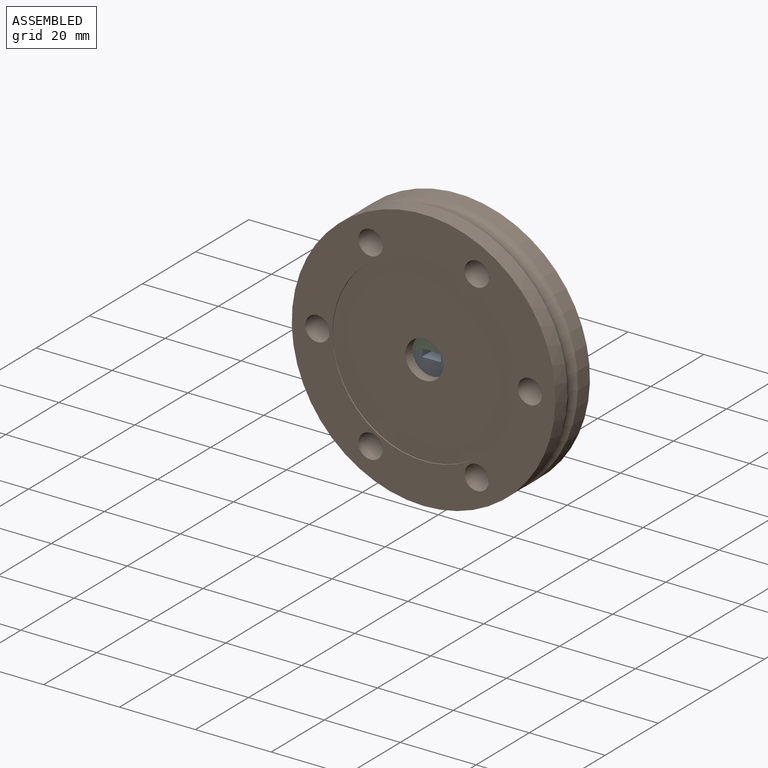
[diagram: assembled view]
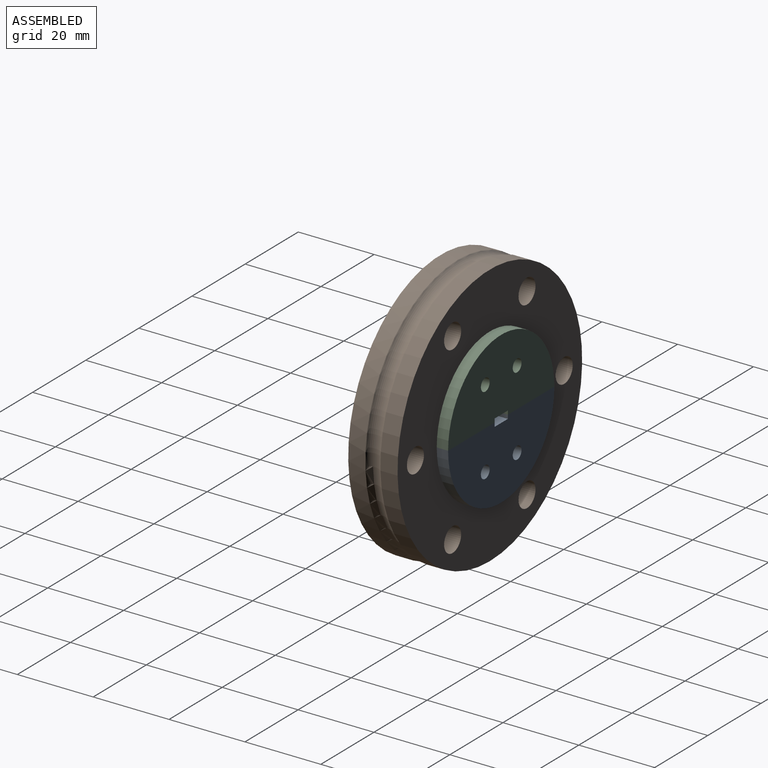
[diagram: assembled view, second angle]
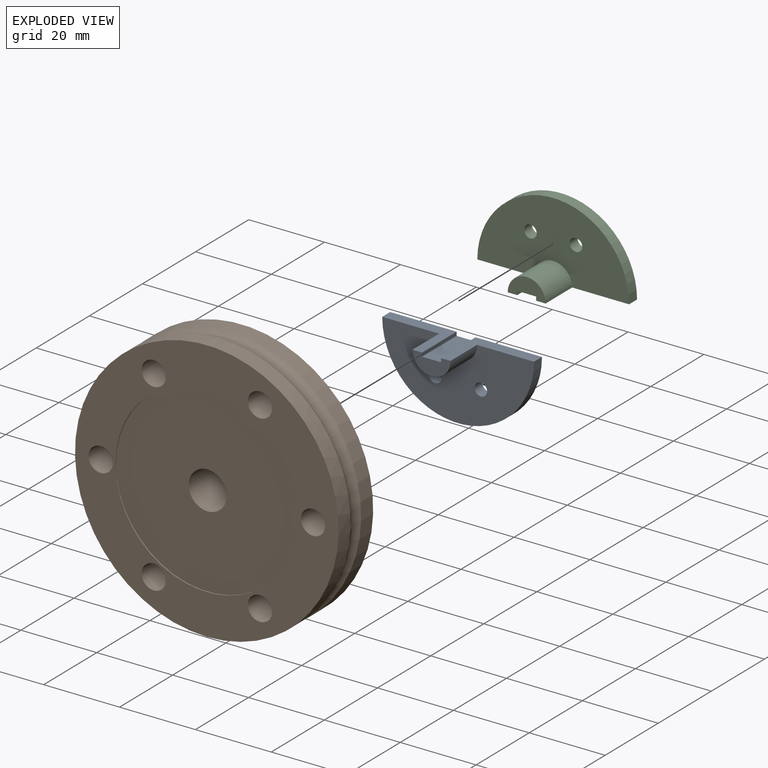
[diagram: exploded view]
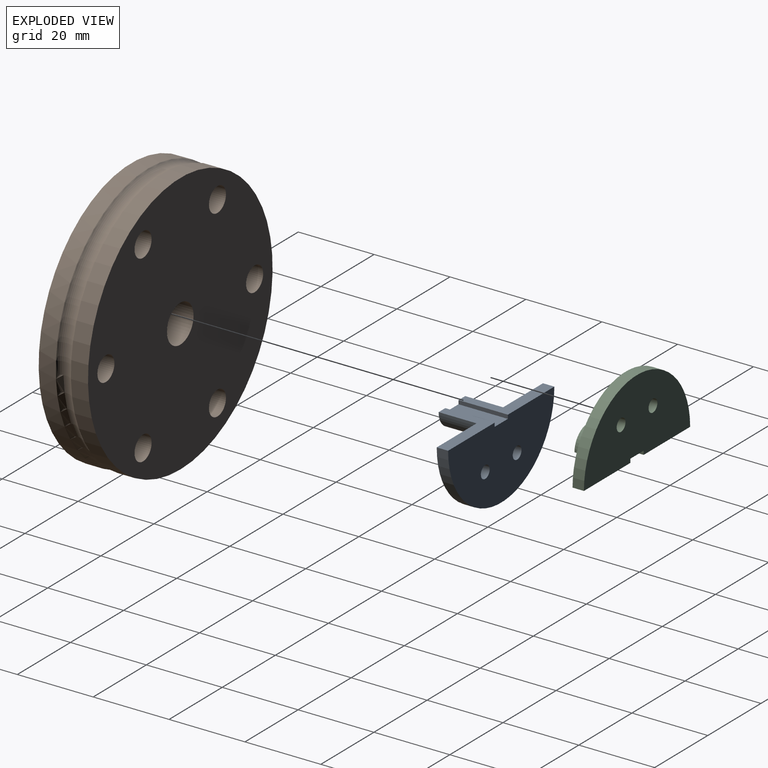
[diagram: exploded view, second angle]
ASSEMBLY  parts=3 mates=4
PART A: 12 faces, bbox 13x40x20 mm
  f0: plane 17.5x13mm, normal (0,0,1), area 77.5mm2, adj f1,f2,f3,f4,f5,f8
  f1: plane 10x5mm, normal (1,0,0), area 34.3mm2, adj f0,f2,f6,f7,f8,f9
  f2: cylinder r=5mm len=10mm, axis (1,0,0), area 157.1mm2, adj f0,f1,f3,f6
  f3: plane 40x20mm, normal (1,0,0), area 571.9mm2, adj f0,f2,f4,f6,f10,f11
  f4: cylinder r=20mm len=40mm, axis (1,0,0), area 188.5mm2, adj f0,f3,f5,f6
  f5: plane 40x20mm, normal (-1,0,0), area 606.2mm2, adj f0,f4,f6,f7,f8,f9,f10,f11
  f6: plane 17.5x13mm, normal (0,0,1), area 77.5mm2, adj f1,f2,f3,f4,f5,f7
  f7: plane 13x1mm, normal (0,-1,0), area 13mm2, adj f1,f5,f6,f9
  f8: plane 13x1mm, normal (0,1,0), area 13mm2, adj f0,f1,f5,f9
  f9: plane 13x5mm, normal (0,0,1), area 65mm2, adj f1,f5,f7,f8
  f10: cylinder r=1.65mm len=3.3mm, axis (-1,0,0), area 31.1mm2, adj f3,f5
  f11: cylinder r=1.65mm len=3.3mm, axis (-1,0,0), area 31.1mm2, adj f3,f5
PART B: 14 faces, bbox 75.5x13x75.5 mm
  f0: cylinder r=34.75mm len=69.5mm, axis (0,-1,0), area 986mm2, adj f1,f4
  f1: plane 69.5x69.5mm, normal (0,-1,0), area 1776mm2, adj f0,f2,f8,f9,f10,f11,f12,f13
  f2: cylinder r=24.1mm len=48.2mm, axis (0,-1,0), area 45.4mm2, adj f1,f3
  f3: plane 48.2x48.2mm, normal (0,-1,0), area 1746.1mm2, adj f2,f7
  f4: torus R=37mm, axis (0,1,0), area 933.3mm2, adj f0,f6
  f5: plane 69.5x69.5mm, normal (0,1,0), area 3522.1mm2, adj f6,f7,f8,f9,f10,f11,f12,f13
  f6: cylinder r=34.75mm len=69.5mm, axis (0,-1,0), area 986mm2, adj f4,f5
  f7: cylinder r=5mm len=12.7mm, axis (0,1,0), area 399mm2, adj f3,f5
  f8: cylinder r=3.2mm len=13mm, axis (0,1,0), area 261.4mm2, adj f1,f5
  f9: cylinder r=3.2mm len=13mm, axis (0,1,0), area 261.4mm2, adj f1,f5
  f10: cylinder r=3.2mm len=13mm, axis (0,1,0), area 261.4mm2, adj f1,f5
  f11: cylinder r=3.2mm len=13mm, axis (0,1,0), area 261.4mm2, adj f1,f5
  f12: cylinder r=3.2mm len=13mm, axis (0,1,0), area 261.4mm2, adj f1,f5
  f13: cylinder r=3.2mm len=13mm, axis (0,1,0), area 261.4mm2, adj f1,f5
PART C: same geometry as A
PLACE A rot(axis=(0,0,-1),90deg) t=(-3.32,-24.78,26.72)mm
PLACE B t=(-3.32,-40.78,26.72)mm
PLACE C rot(axis=(-0.71,0.71,0),180deg) t=(-3.32,-24.78,26.72)mm
MATE parallel C.f5 <-> A.f5  axis (0,1,0) through (-3.32,-24.78,35.22)mm
MATE fastened A.f2 <-> B.f2  axis (0,-1,0) through (-3.32,-27.78,26.72)mm
MATE cylindrical A.f2 <-> B.f2  axis (0,-1,0) through (-3.32,-27.78,26.72)mm
MATE cylindrical C.f2 <-> B.f0  axis (0,-1,0) through (-3.32,-27.78,26.72)mm
